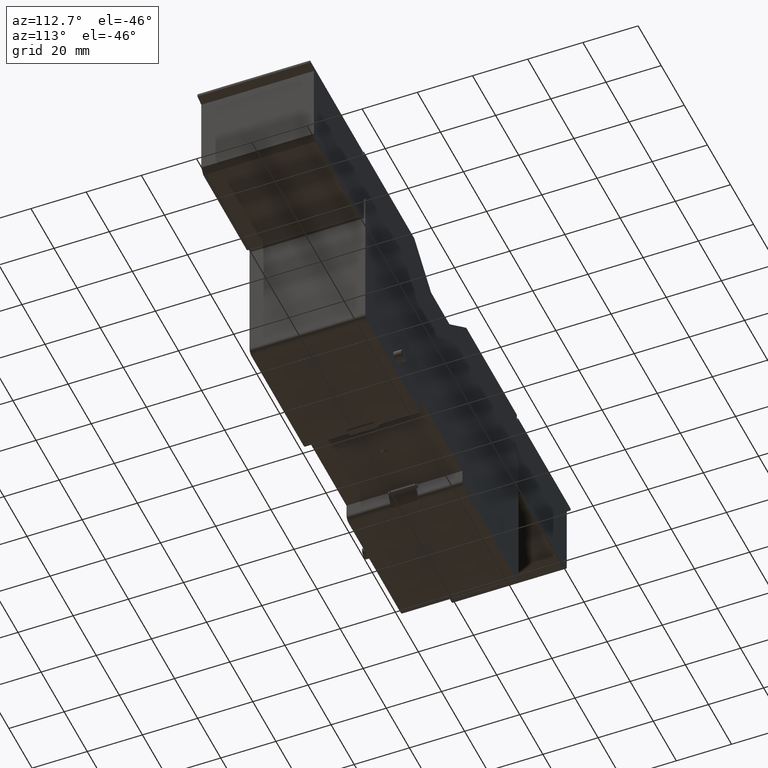
[diagram: clean part render]
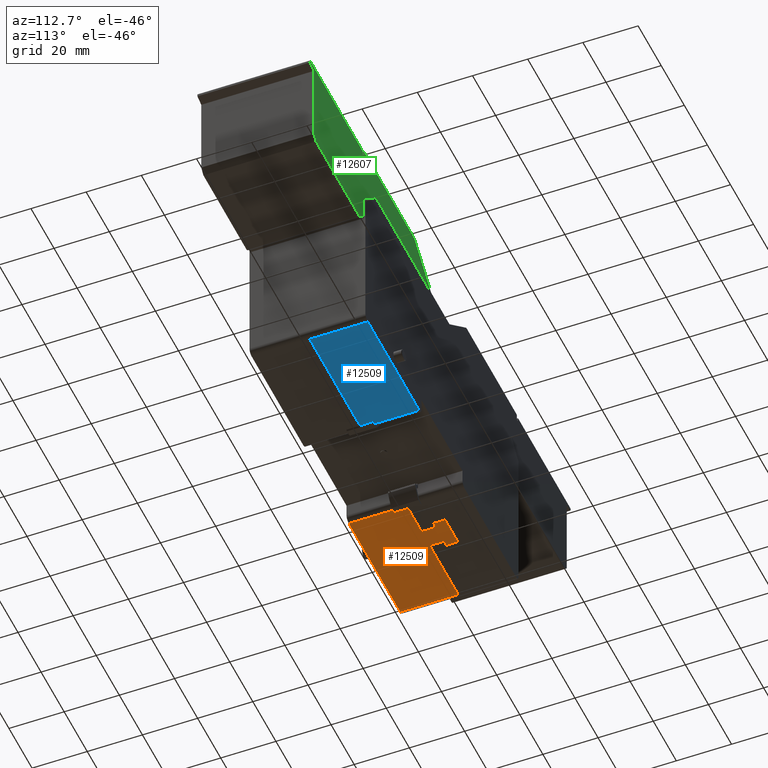
[diagram: same view with three faces highlighted in distinct colors, each labeled with its STEP entity id]
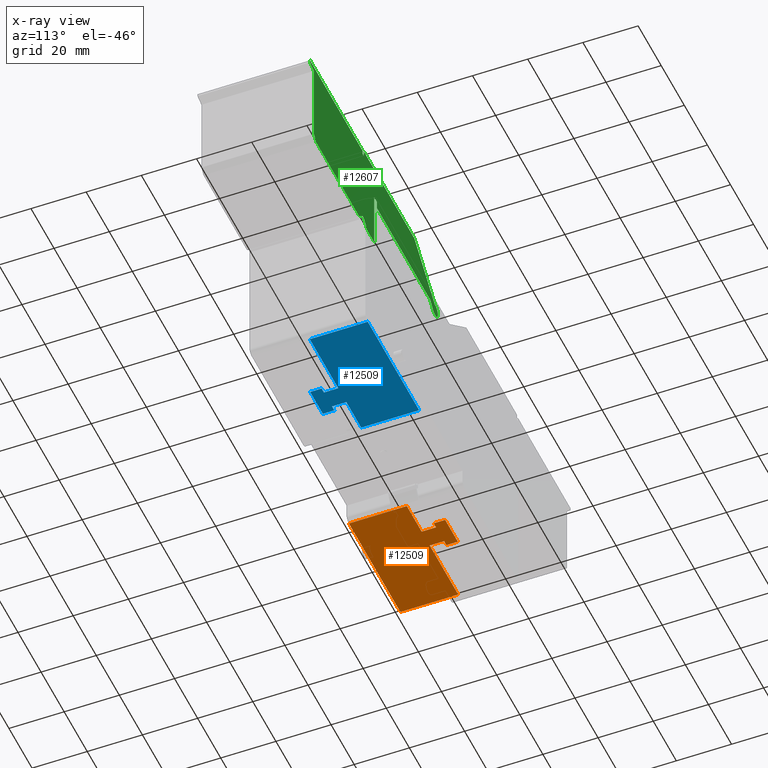
[diagram: x-ray of the same camera — body ghosted, the three highlighted faces saturated]
A machine part, auxiliary view with three faces highlighted in distinct colors.
The next image is the same camera in x-ray (body ghosted, the three faces saturated) — at least one of them is partly hidden behind the body in this view.
Their STEP definitions:

[orange] entity #12509 — the highlighted planar face has unit normal (-0, 0, -1).
#364=LINE('',#19197,#1656);
#369=LINE('',#19216,#1661);
#371=LINE('',#19225,#1663);
#375=LINE('',#19233,#1667);
#395=LINE('',#19283,#1687);
#396=LINE('',#19284,#1688);
#397=LINE('',#19286,#1689);
#398=LINE('',#19288,#1690);
#399=LINE('',#19290,#1691);
#400=LINE('',#19292,#1692);
#401=LINE('',#19294,#1693);
#402=LINE('',#19296,#1694);
#1656=VECTOR('',#15550,1000.);
#1661=VECTOR('',#15571,1000.);
#1663=VECTOR('',#15579,1000.);
#1667=VECTOR('',#15583,1000.);
#1687=VECTOR('',#15619,1000.);
#1688=VECTOR('',#15620,1000.);
#1689=VECTOR('',#15621,1000.);
#1690=VECTOR('',#15622,1000.);
#1691=VECTOR('',#15623,1000.);
#1692=VECTOR('',#15624,1000.);
#1693=VECTOR('',#15625,1000.);
#1694=VECTOR('',#15626,1000.);
#3198=ORIENTED_EDGE('',*,*,#6903,.T.);
#3199=ORIENTED_EDGE('',*,*,#6946,.F.);
#3200=ORIENTED_EDGE('',*,*,#6912,.F.);
#3201=ORIENTED_EDGE('',*,*,#6920,.T.);
#3202=ORIENTED_EDGE('',*,*,#6947,.T.);
#3203=ORIENTED_EDGE('',*,*,#6948,.T.);
#3204=ORIENTED_EDGE('',*,*,#6949,.T.);
#3205=ORIENTED_EDGE('',*,*,#6950,.T.);
#3206=ORIENTED_EDGE('',*,*,#6951,.F.);
#3207=ORIENTED_EDGE('',*,*,#6952,.T.);
#3208=ORIENTED_EDGE('',*,*,#6953,.F.);
#3209=ORIENTED_EDGE('',*,*,#6916,.T.);
#6903=EDGE_CURVE('',#8786,#8785,#364,.T.);
#6912=EDGE_CURVE('',#8792,#8793,#369,.T.);
#6916=EDGE_CURVE('',#8796,#8786,#371,.T.);
#6920=EDGE_CURVE('',#8792,#8799,#375,.T.);
#6946=EDGE_CURVE('',#8793,#8785,#395,.T.);
#6947=EDGE_CURVE('',#8799,#8822,#396,.T.);
#6948=EDGE_CURVE('',#8822,#8823,#397,.T.);
#6949=EDGE_CURVE('',#8823,#8824,#398,.T.);
#6950=EDGE_CURVE('',#8824,#8825,#399,.T.);
#6951=EDGE_CURVE('',#8826,#8825,#400,.T.);
#6952=EDGE_CURVE('',#8826,#8827,#401,.T.);
#6953=EDGE_CURVE('',#8796,#8827,#402,.T.);
#8785=VERTEX_POINT('',#19196);
#8786=VERTEX_POINT('',#19198);
#8792=VERTEX_POINT('',#19217);
#8793=VERTEX_POINT('',#19218);
#8796=VERTEX_POINT('',#19226);
#8799=VERTEX_POINT('',#19232);
#8822=VERTEX_POINT('',#19285);
#8823=VERTEX_POINT('',#19287);
#8824=VERTEX_POINT('',#19289);
#8825=VERTEX_POINT('',#19291);
#8826=VERTEX_POINT('',#19293);
#8827=VERTEX_POINT('',#19295);
#10416=EDGE_LOOP('',(#3198,#3199,#3200,#3201,#3202,#3203,#3204,#3205,#3206,
#3207,#3208,#3209));
#11208=FACE_BOUND('',#10416,.T.);
#11975=PLANE('',#14359);
#12509=ADVANCED_FACE('',(#11208),#11975,.T.);
#14359=AXIS2_PLACEMENT_3D('',#19282,#15617,#15618);
#15550=DIRECTION('',(0.,-1.,0.));
#15571=DIRECTION('',(0.,-1.,0.));
#15579=DIRECTION('',(1.,0.,0.));
#15583=DIRECTION('',(1.,0.,0.));
#15617=DIRECTION('',(-2.33632791377348E-16,0.,-1.));
#15618=DIRECTION('',(-1.,0.,2.33632791377348E-16));
#15619=DIRECTION('',(1.,0.,-2.33632791377348E-16));
#15620=DIRECTION('',(0.,1.,-1.79763831868589E-16));
#15621=DIRECTION('',(-1.,0.,0.));
#15622=DIRECTION('',(0.,1.,-8.36005714103095E-16));
#15623=DIRECTION('',(1.,0.,0.));
#15624=DIRECTION('',(0.,1.,-8.36005714103095E-16));
#15625=DIRECTION('',(-1.,0.,0.));
#15626=DIRECTION('',(0.,1.,-1.79763831868589E-16));
#19196=CARTESIAN_POINT('',(-19.75,0.,-29.6900000000007));
#19197=CARTESIAN_POINT('',(-19.75,3.9,-29.6900000000007));
#19198=CARTESIAN_POINT('',(-19.75,21.,-29.6900000000007));
#19216=CARTESIAN_POINT('',(-64.3,3.9,-29.6900000000007));
#19217=CARTESIAN_POINT('',(-64.3,21.,-29.6900000000007));
#19218=CARTESIAN_POINT('',(-64.3,0.,-29.6900000000007));
#19225=CARTESIAN_POINT('',(-43.5,21.,-29.6900000000007));
#19226=CARTESIAN_POINT('',(-32.62,21.,-29.6900000000007));
#19232=CARTESIAN_POINT('',(-39.62,21.,-29.6900000000007));
#19233=CARTESIAN_POINT('',(-64.3,21.,-29.6900000000007));
#19282=CARTESIAN_POINT('',(-64.3,3.9,-29.6900000000007));
#19283=CARTESIAN_POINT('',(-64.3,0.,-29.6900000000007));
#19284=CARTESIAN_POINT('',(-39.62,11.05,-29.6900000000007));
#19285=CARTESIAN_POINT('',(-39.62,26.2,-29.6900000000007));
#19286=CARTESIAN_POINT('',(-30.62,26.2,-29.6900000000007));
#19287=CARTESIAN_POINT('',(-41.62,26.2,-29.6900000000007));
#19288=CARTESIAN_POINT('',(-41.62,26.2,-29.6900000000007));
#19289=CARTESIAN_POINT('',(-41.62,30.35002779697,-29.6900000000007));
#19290=CARTESIAN_POINT('',(-39.62,30.35002779697,-29.6900000000007));
#19291=CARTESIAN_POINT('',(-30.62,30.35002779697,-29.6900000000007));
#19292=CARTESIAN_POINT('',(-30.62,26.2,-29.6900000000007));
#19293=CARTESIAN_POINT('',(-30.62,26.2,-29.6900000000007));
#19294=CARTESIAN_POINT('',(-30.62,26.2,-29.6900000000007));
#19295=CARTESIAN_POINT('',(-32.62,26.2,-29.6900000000007));
#19296=CARTESIAN_POINT('',(-32.62,11.05,-29.6900000000007));

[blue] entity #12509 — the highlighted planar face has unit normal (0, 0, -1).
#364=LINE('',#19197,#1656);
#369=LINE('',#19216,#1661);
#371=LINE('',#19225,#1663);
#375=LINE('',#19233,#1667);
#395=LINE('',#19283,#1687);
#396=LINE('',#19284,#1688);
#397=LINE('',#19286,#1689);
#398=LINE('',#19288,#1690);
#399=LINE('',#19290,#1691);
#400=LINE('',#19292,#1692);
#401=LINE('',#19294,#1693);
#402=LINE('',#19296,#1694);
#1656=VECTOR('',#15550,1000.);
#1661=VECTOR('',#15571,1000.);
#1663=VECTOR('',#15579,1000.);
#1667=VECTOR('',#15583,1000.);
#1687=VECTOR('',#15619,1000.);
#1688=VECTOR('',#15620,1000.);
#1689=VECTOR('',#15621,1000.);
#1690=VECTOR('',#15622,1000.);
#1691=VECTOR('',#15623,1000.);
#1692=VECTOR('',#15624,1000.);
#1693=VECTOR('',#15625,1000.);
#1694=VECTOR('',#15626,1000.);
#3198=ORIENTED_EDGE('',*,*,#6903,.T.);
#3199=ORIENTED_EDGE('',*,*,#6946,.F.);
#3200=ORIENTED_EDGE('',*,*,#6912,.F.);
#3201=ORIENTED_EDGE('',*,*,#6920,.T.);
#3202=ORIENTED_EDGE('',*,*,#6947,.T.);
#3203=ORIENTED_EDGE('',*,*,#6948,.T.);
#3204=ORIENTED_EDGE('',*,*,#6949,.T.);
#3205=ORIENTED_EDGE('',*,*,#6950,.T.);
#3206=ORIENTED_EDGE('',*,*,#6951,.F.);
#3207=ORIENTED_EDGE('',*,*,#6952,.T.);
#3208=ORIENTED_EDGE('',*,*,#6953,.F.);
#3209=ORIENTED_EDGE('',*,*,#6916,.T.);
#6903=EDGE_CURVE('',#8786,#8785,#364,.T.);
#6912=EDGE_CURVE('',#8792,#8793,#369,.T.);
#6916=EDGE_CURVE('',#8796,#8786,#371,.T.);
#6920=EDGE_CURVE('',#8792,#8799,#375,.T.);
#6946=EDGE_CURVE('',#8793,#8785,#395,.T.);
#6947=EDGE_CURVE('',#8799,#8822,#396,.T.);
#6948=EDGE_CURVE('',#8822,#8823,#397,.T.);
#6949=EDGE_CURVE('',#8823,#8824,#398,.T.);
#6950=EDGE_CURVE('',#8824,#8825,#399,.T.);
#6951=EDGE_CURVE('',#8826,#8825,#400,.T.);
#6952=EDGE_CURVE('',#8826,#8827,#401,.T.);
#6953=EDGE_CURVE('',#8796,#8827,#402,.T.);
#8785=VERTEX_POINT('',#19196);
#8786=VERTEX_POINT('',#19198);
#8792=VERTEX_POINT('',#19217);
#8793=VERTEX_POINT('',#19218);
#8796=VERTEX_POINT('',#19226);
#8799=VERTEX_POINT('',#19232);
#8822=VERTEX_POINT('',#19285);
#8823=VERTEX_POINT('',#19287);
#8824=VERTEX_POINT('',#19289);
#8825=VERTEX_POINT('',#19291);
#8826=VERTEX_POINT('',#19293);
#8827=VERTEX_POINT('',#19295);
#10416=EDGE_LOOP('',(#3198,#3199,#3200,#3201,#3202,#3203,#3204,#3205,#3206,
#3207,#3208,#3209));
#11208=FACE_BOUND('',#10416,.T.);
#11975=PLANE('',#14359);
#12509=ADVANCED_FACE('',(#11208),#11975,.T.);
#14359=AXIS2_PLACEMENT_3D('',#19282,#15617,#15618);
#15550=DIRECTION('',(0.,-1.,0.));
#15571=DIRECTION('',(0.,-1.,0.));
#15579=DIRECTION('',(1.,0.,0.));
#15583=DIRECTION('',(1.,0.,0.));
#15617=DIRECTION('',(-2.33632791377348E-16,0.,-1.));
#15618=DIRECTION('',(-1.,0.,2.33632791377348E-16));
#15619=DIRECTION('',(1.,0.,-2.33632791377348E-16));
#15620=DIRECTION('',(0.,1.,-1.79763831868589E-16));
#15621=DIRECTION('',(-1.,0.,0.));
#15622=DIRECTION('',(0.,1.,-8.36005714103095E-16));
#15623=DIRECTION('',(1.,0.,0.));
#15624=DIRECTION('',(0.,1.,-8.36005714103095E-16));
#15625=DIRECTION('',(-1.,0.,0.));
#15626=DIRECTION('',(0.,1.,-1.79763831868589E-16));
#19196=CARTESIAN_POINT('',(-19.75,0.,-29.6900000000007));
#19197=CARTESIAN_POINT('',(-19.75,3.9,-29.6900000000007));
#19198=CARTESIAN_POINT('',(-19.75,21.,-29.6900000000007));
#19216=CARTESIAN_POINT('',(-64.3,3.9,-29.6900000000007));
#19217=CARTESIAN_POINT('',(-64.3,21.,-29.6900000000007));
#19218=CARTESIAN_POINT('',(-64.3,0.,-29.6900000000007));
#19225=CARTESIAN_POINT('',(-43.5,21.,-29.6900000000007));
#19226=CARTESIAN_POINT('',(-32.62,21.,-29.6900000000007));
#19232=CARTESIAN_POINT('',(-39.62,21.,-29.6900000000007));
#19233=CARTESIAN_POINT('',(-64.3,21.,-29.6900000000007));
#19282=CARTESIAN_POINT('',(-64.3,3.9,-29.6900000000007));
#19283=CARTESIAN_POINT('',(-64.3,0.,-29.6900000000007));
#19284=CARTESIAN_POINT('',(-39.62,11.05,-29.6900000000007));
#19285=CARTESIAN_POINT('',(-39.62,26.2,-29.6900000000007));
#19286=CARTESIAN_POINT('',(-30.62,26.2,-29.6900000000007));
#19287=CARTESIAN_POINT('',(-41.62,26.2,-29.6900000000007));
#19288=CARTESIAN_POINT('',(-41.62,26.2,-29.6900000000007));
#19289=CARTESIAN_POINT('',(-41.62,30.35002779697,-29.6900000000007));
#19290=CARTESIAN_POINT('',(-39.62,30.35002779697,-29.6900000000007));
#19291=CARTESIAN_POINT('',(-30.62,30.35002779697,-29.6900000000007));
#19292=CARTESIAN_POINT('',(-30.62,26.2,-29.6900000000007));
#19293=CARTESIAN_POINT('',(-30.62,26.2,-29.6900000000007));
#19294=CARTESIAN_POINT('',(-30.62,26.2,-29.6900000000007));
#19295=CARTESIAN_POINT('',(-32.62,26.2,-29.6900000000007));
#19296=CARTESIAN_POINT('',(-32.62,11.05,-29.6900000000007));

[green] entity #12607 — the highlighted planar face has unit normal (-0, -1, 0).
#484=LINE('',#19561,#1776);
#487=LINE('',#19567,#1779);
#490=LINE('',#19573,#1782);
#494=LINE('',#19585,#1786);
#497=LINE('',#19591,#1789);
#500=LINE('',#19597,#1792);
#503=LINE('',#19603,#1795);
#506=LINE('',#19609,#1798);
#509=LINE('',#19615,#1801);
#512=LINE('',#19621,#1804);
#515=LINE('',#19627,#1807);
#518=LINE('',#19633,#1810);
#521=LINE('',#19639,#1813);
#524=LINE('',#19645,#1816);
#527=LINE('',#19651,#1819);
#530=LINE('',#19657,#1822);
#533=LINE('',#19663,#1825);
#536=LINE('',#19669,#1828);
#539=LINE('',#19675,#1831);
#542=LINE('',#19680,#1834);
#1776=VECTOR('',#15924,1000.);
#1779=VECTOR('',#15929,1000.);
#1782=VECTOR('',#15934,1000.);
#1786=VECTOR('',#15946,1000.);
#1789=VECTOR('',#15951,1000.);
#1792=VECTOR('',#15956,1000.);
#1795=VECTOR('',#15961,1000.);
#1798=VECTOR('',#15966,1000.);
#1801=VECTOR('',#15971,1000.);
#1804=VECTOR('',#15976,1000.);
#1807=VECTOR('',#15981,1000.);
#1810=VECTOR('',#15986,1000.);
#1813=VECTOR('',#15991,1000.);
#1816=VECTOR('',#15996,1000.);
#1819=VECTOR('',#16001,1000.);
#1822=VECTOR('',#16006,1000.);
#1825=VECTOR('',#16011,1000.);
#1828=VECTOR('',#16016,1000.);
#1831=VECTOR('',#16021,1000.);
#1834=VECTOR('',#16026,1000.);
#3558=ORIENTED_EDGE('',*,*,#7065,.F.);
#3559=ORIENTED_EDGE('',*,*,#7125,.F.);
#3560=ORIENTED_EDGE('',*,*,#7122,.F.);
#3561=ORIENTED_EDGE('',*,*,#7119,.F.);
#3562=ORIENTED_EDGE('',*,*,#7116,.F.);
#3563=ORIENTED_EDGE('',*,*,#7113,.F.);
#3564=ORIENTED_EDGE('',*,*,#7110,.F.);
#3565=ORIENTED_EDGE('',*,*,#7107,.F.);
#3566=ORIENTED_EDGE('',*,*,#7104,.F.);
#3567=ORIENTED_EDGE('',*,*,#7101,.F.);
#3568=ORIENTED_EDGE('',*,*,#7098,.F.);
#3569=ORIENTED_EDGE('',*,*,#7095,.F.);
#3570=ORIENTED_EDGE('',*,*,#7092,.F.);
#3571=ORIENTED_EDGE('',*,*,#7089,.F.);
#3572=ORIENTED_EDGE('',*,*,#7086,.F.);
#3573=ORIENTED_EDGE('',*,*,#7083,.F.);
#3574=ORIENTED_EDGE('',*,*,#7080,.F.);
#3575=ORIENTED_EDGE('',*,*,#7077,.F.);
#3576=ORIENTED_EDGE('',*,*,#7074,.F.);
#3577=ORIENTED_EDGE('',*,*,#7071,.F.);
#3578=ORIENTED_EDGE('',*,*,#7068,.F.);
#7065=EDGE_CURVE('',#8902,#8903,#484,.T.);
#7068=EDGE_CURVE('',#8903,#8905,#487,.T.);
#7071=EDGE_CURVE('',#8905,#8907,#490,.T.);
#7074=EDGE_CURVE('',#8907,#8909,#10101,.T.);
#7077=EDGE_CURVE('',#8909,#8911,#494,.T.);
#7080=EDGE_CURVE('',#8911,#8913,#497,.T.);
#7083=EDGE_CURVE('',#8913,#8915,#500,.T.);
#7086=EDGE_CURVE('',#8915,#8917,#503,.T.);
#7089=EDGE_CURVE('',#8917,#8919,#506,.T.);
#7092=EDGE_CURVE('',#8919,#8921,#509,.T.);
#7095=EDGE_CURVE('',#8921,#8923,#512,.T.);
#7098=EDGE_CURVE('',#8923,#8925,#515,.T.);
#7101=EDGE_CURVE('',#8925,#8927,#518,.T.);
#7104=EDGE_CURVE('',#8927,#8929,#521,.T.);
#7107=EDGE_CURVE('',#8929,#8931,#524,.T.);
#7110=EDGE_CURVE('',#8931,#8933,#527,.T.);
#7113=EDGE_CURVE('',#8933,#8935,#530,.T.);
#7116=EDGE_CURVE('',#8935,#8937,#533,.T.);
#7119=EDGE_CURVE('',#8937,#8939,#536,.T.);
#7122=EDGE_CURVE('',#8939,#8941,#539,.T.);
#7125=EDGE_CURVE('',#8941,#8902,#542,.T.);
#8902=VERTEX_POINT('',#19560);
#8903=VERTEX_POINT('',#19562);
#8905=VERTEX_POINT('',#19568);
#8907=VERTEX_POINT('',#19574);
#8909=VERTEX_POINT('',#19580);
#8911=VERTEX_POINT('',#19586);
#8913=VERTEX_POINT('',#19592);
#8915=VERTEX_POINT('',#19598);
#8917=VERTEX_POINT('',#19604);
#8919=VERTEX_POINT('',#19610);
#8921=VERTEX_POINT('',#19616);
#8923=VERTEX_POINT('',#19622);
#8925=VERTEX_POINT('',#19628);
#8927=VERTEX_POINT('',#19634);
#8929=VERTEX_POINT('',#19640);
#8931=VERTEX_POINT('',#19646);
#8933=VERTEX_POINT('',#19652);
#8935=VERTEX_POINT('',#19658);
#8937=VERTEX_POINT('',#19664);
#8939=VERTEX_POINT('',#19670);
#8941=VERTEX_POINT('',#19676);
#10101=CIRCLE('',#14472,2.41911089923885);
#10536=EDGE_LOOP('',(#3558,#3559,#3560,#3561,#3562,#3563,#3564,#3565,#3566,
#3567,#3568,#3569,#3570,#3571,#3572,#3573,#3574,#3575,#3576,#3577,#3578));
#11328=FACE_BOUND('',#10536,.T.);
#12051=PLANE('',#14490);
#12607=ADVANCED_FACE('',(#11328),#12051,.F.);
#14472=AXIS2_PLACEMENT_3D('',#19579,#15940,#15941);
#14490=AXIS2_PLACEMENT_3D('',#19681,#16027,#16028);
#15924=DIRECTION('',(0.,0.,1.));
#15929=DIRECTION('',(-1.,0.,-1.5842672720808E-16));
#15934=DIRECTION('',(-0.766044443118978,0.,-0.642787609686539));
#15940=DIRECTION('',(0.,-1.,0.));
#15941=DIRECTION('',(1.,0.,0.));
#15946=DIRECTION('',(0.696896255024751,0.,0.717171952695082));
#15951=DIRECTION('',(1.,0.,-1.5050925495941E-16));
#15956=DIRECTION('',(0.,0.,1.));
#15961=DIRECTION('',(1.,0.,0.));
#15966=DIRECTION('',(0.,0.,-1.));
#15971=DIRECTION('',(1.,0.,0.));
#15976=DIRECTION('',(0.709099554956058,0.,0.705108375472254));
#15981=DIRECTION('',(1.,0.,0.));
#15986=DIRECTION('',(0.709099554956058,0.,-0.705108375472254));
#15991=DIRECTION('',(1.,0.,1.838117590439E-16));
#15996=DIRECTION('',(0.662620048215736,0.,0.748955720789004));
#16001=DIRECTION('',(0.,0.,1.));
#16006=DIRECTION('',(0.965925826289068,0.,0.25881904510252));
#16011=DIRECTION('',(0.,0.,1.));
#16016=DIRECTION('',(-1.,0.,0.));
#16021=DIRECTION('',(0.,0.,-1.));
#16026=DIRECTION('',(-1.,0.,0.));
#16027=DIRECTION('',(0.,-1.,0.));
#16028=DIRECTION('',(0.,0.,-1.));
#19560=CARTESIAN_POINT('',(66.3000000000011,41.4,48.4099999999993));
#19561=CARTESIAN_POINT('',(66.3000000000011,41.4,48.4099999999993));
#19562=CARTESIAN_POINT('',(66.3000000000011,41.4,50.6099999999993));
#19567=CARTESIAN_POINT('',(66.3000000000011,41.4,50.6099999999993));
#19568=CARTESIAN_POINT('',(22.5012418851939,41.4,50.6099999999993));
#19573=CARTESIAN_POINT('',(4.75124188519389,41.4,35.7159815466026));
#19574=CARTESIAN_POINT('',(4.75124188519389,41.4,35.7159815466026));
#19579=CARTESIAN_POINT('',(4.49954695035296,41.4,33.3100000000001));
#19580=CARTESIAN_POINT('',(6.23446543774604,41.4,31.624130673831));
#19585=CARTESIAN_POINT('',(6.23446543774604,41.4,31.624130673831));
#19586=CARTESIAN_POINT('',(8.74722774337997,41.4,34.2099999999993));
#19591=CARTESIAN_POINT('',(8.74722774337997,41.4,34.2099999999993));
#19592=CARTESIAN_POINT('',(54.85,41.4,34.2099999999993));
#19597=CARTESIAN_POINT('',(54.85,41.4,34.2099999999993));
#19598=CARTESIAN_POINT('',(54.85,41.4,37.2099999999993));
#19603=CARTESIAN_POINT('',(54.85,41.4,37.2099999999993));
#19604=CARTESIAN_POINT('',(57.2,41.4,37.2099999999993));
#19609=CARTESIAN_POINT('',(57.2,41.4,37.2099999999993));
#19610=CARTESIAN_POINT('',(57.2,41.4,15.9099999999993));
#19615=CARTESIAN_POINT('',(57.2,41.4,15.9099999999993));
#19616=CARTESIAN_POINT('',(63.635,41.4,15.9099999999993));
#19621=CARTESIAN_POINT('',(63.635,41.4,15.9099999999993));
#19622=CARTESIAN_POINT('',(66.3,41.4,18.5599999999993));
#19627=CARTESIAN_POINT('',(67.3,41.4,18.5599999999993));
#19628=CARTESIAN_POINT('',(67.3,41.4,18.5599999999993));
#19633=CARTESIAN_POINT('',(67.3,41.4,18.5599999999993));
#19634=CARTESIAN_POINT('',(69.965,41.4,15.9099999999993));
#19639=CARTESIAN_POINT('',(69.965,41.4,15.9099999999993));
#19640=CARTESIAN_POINT('',(107.715,41.4,15.9099999999993));
#19645=CARTESIAN_POINT('',(107.715,41.4,15.9099999999993));
#19646=CARTESIAN_POINT('',(109.5,41.4,17.9275754796551));
#19651=CARTESIAN_POINT('',(109.5,41.4,17.9275754796551));
#19652=CARTESIAN_POINT('',(109.5,41.4,48.1099999999993));
#19657=CARTESIAN_POINT('',(109.5,41.4,48.1099999999993));
#19658=CARTESIAN_POINT('',(112.858845726812,41.4,49.0099999999993));
#19663=CARTESIAN_POINT('',(112.858845726812,41.4,49.0099999999993));
#19664=CARTESIAN_POINT('',(112.858845726812,41.4,49.9099999999993));
#19669=CARTESIAN_POINT('',(112.858845726812,41.4,49.9099999999993));
#19670=CARTESIAN_POINT('',(67.3,41.4,49.9099999999993));
#19675=CARTESIAN_POINT('',(67.3,41.4,49.9099999999993));
#19676=CARTESIAN_POINT('',(67.3,41.4,48.4099999999993));
#19680=CARTESIAN_POINT('',(67.3,41.4,48.4099999999993));
#19681=CARTESIAN_POINT('',(4.49954695035296,41.4,33.3100000000001));